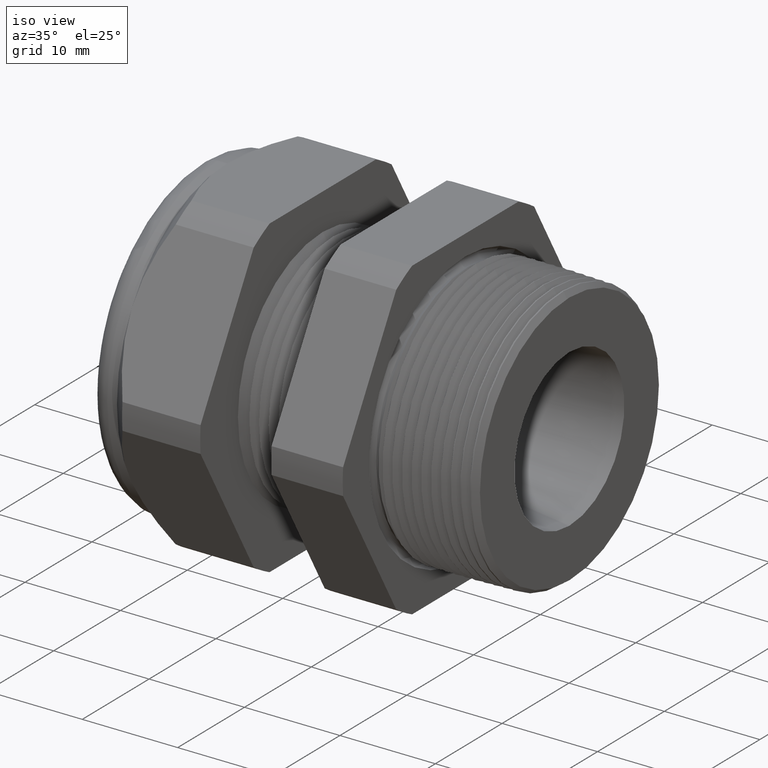
[diagram: clean part render]
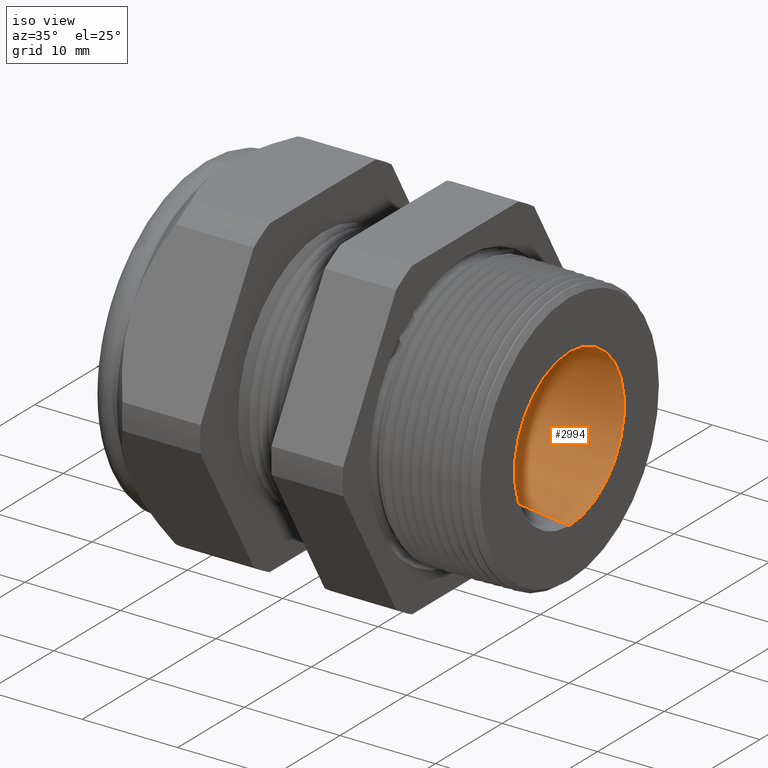
[diagram: same view with one face highlighted and labeled with its STEP entity id]
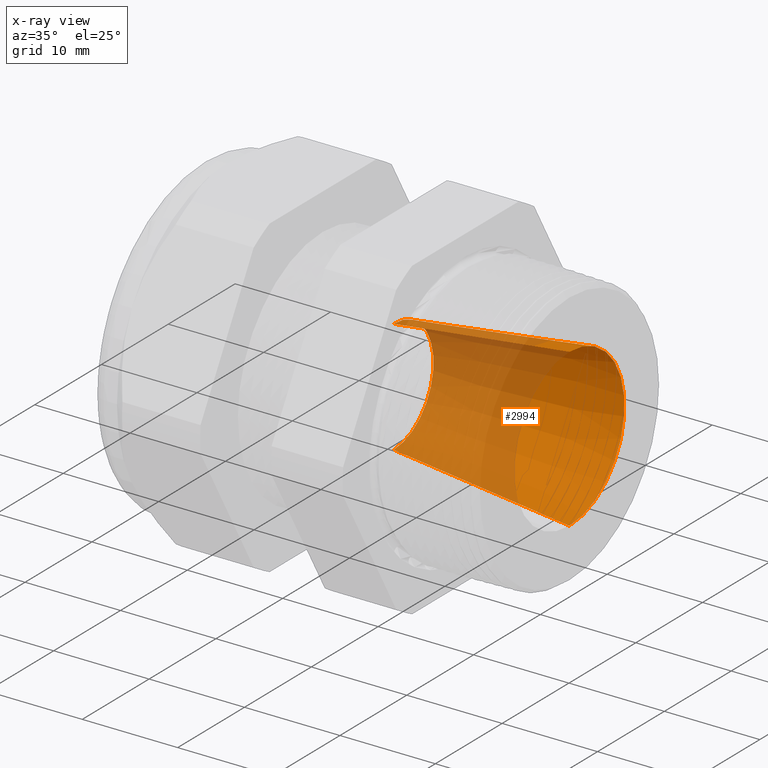
[diagram: x-ray of the same camera — body ghosted, the highlighted face saturated]
A machine part, iso view. The second image highlights one B-rep face of the part: STEP entity #2994.
The next image is the same camera in x-ray: the body ghosted, the highlighted face saturated — about 53% of this face is hidden behind the body in this view.
In plain terms, the highlighted conical surface has half-angle 7 deg.
Its self-contained STEP definition (entity closure, byte-faithful):
#226 = EDGE_CURVE ( 'NONE', #3517, #227, #673, .T. ) ;
#227 = VERTEX_POINT ( 'NONE', #727 ) ;
#230 = VERTEX_POINT ( 'NONE', #721 ) ;
#232 = EDGE_CURVE ( 'NONE', #3503, #230, #720, .T. ) ;
#673 = LINE ( 'NONE', #730, #729 ) ;
#717 = DIRECTION ( 'NONE',  ( 0.9925461516413227600, 0.0000000000000000000, -0.1218693434051409100 ) ) ;
#718 = VECTOR ( 'NONE', #717, 39.37007874015748900 ) ;
#719 = CARTESIAN_POINT ( 'NONE',  ( -0.6052755905511809600, 0.0000000000000000000, -0.2349999999999999900 ) ) ;
#720 = LINE ( 'NONE', #719, #718 ) ;
#721 = CARTESIAN_POINT ( 'NONE',  ( 0.1199999999999999500, 0.0000000000000000000, -0.3240526449194167100 ) ) ;
#727 = CARTESIAN_POINT ( 'NONE',  ( 0.1199999999999999500, 3.968500343557975000E-017, 0.3240526449194167100 ) ) ;
#728 = DIRECTION ( 'NONE',  ( 0.9925461516413227600, 1.492469013152954000E-017, 0.1218693434051409100 ) ) ;
#729 = VECTOR ( 'NONE', #728, 39.37007874015748900 ) ;
#730 = CARTESIAN_POINT ( 'NONE',  ( -0.6052755905511809600, 2.877919977996279800E-017, 0.2349999999999999900 ) ) ;
#1085 = DIRECTION ( 'NONE',  ( 0.0000000000000000000, 0.0000000000000000000, -1.000000000000000000 ) ) ;
#1086 = DIRECTION ( 'NONE',  ( 1.000000000000000000, 0.0000000000000000000, 0.0000000000000000000 ) ) ;
#1087 = CARTESIAN_POINT ( 'NONE',  ( 0.1199999999999999500, 0.0000000000000000000, 0.0000000000000000000 ) ) ;
#1088 = AXIS2_PLACEMENT_3D ( 'NONE', #1087, #1086, #1085 ) ;
#1089 = CIRCLE ( 'NONE', #1088, 0.3240526449194167100 ) ;
#1130 = DIRECTION ( 'NONE',  ( 0.0000000000000000000, 0.0000000000000000000, -1.000000000000000000 ) ) ;
#1131 = DIRECTION ( 'NONE',  ( 1.000000000000000000, 0.0000000000000000000, 0.0000000000000000000 ) ) ;
#1132 = CARTESIAN_POINT ( 'NONE',  ( -0.6052755905511809600, 0.0000000000000000000, 0.0000000000000000000 ) ) ;
#1133 = AXIS2_PLACEMENT_3D ( 'NONE', #1132, #1131, #1130 ) ;
#1135 = CONICAL_SURFACE ( 'NONE', #1133, 0.2349999999999999900, 0.1221730476395964700 ) ;
#1136 = FACE_OUTER_BOUND ( 'NONE', #2982, .T. ) ;
#1168 = DIRECTION ( 'NONE',  ( 0.0000000000000000000, 0.0000000000000000000, -1.000000000000000000 ) ) ;
#1169 = DIRECTION ( 'NONE',  ( 1.000000000000000000, 0.0000000000000000000, 0.0000000000000000000 ) ) ;
#1170 = AXIS2_PLACEMENT_3D ( 'NONE', #1176, #1169, #1168 ) ;
#1171 = CIRCLE ( 'NONE', #1170, 0.2349999999999999900 ) ;
#1176 = CARTESIAN_POINT ( 'NONE',  ( -0.6052755905511809600, 0.0000000000000000000, 0.0000000000000000000 ) ) ;
#1884 = CARTESIAN_POINT ( 'NONE',  ( -0.6052755905511809600, 0.0000000000000000000, -0.2349999999999999900 ) ) ;
#1916 = CARTESIAN_POINT ( 'NONE',  ( -0.6052755905511809600, 3.423210160777128000E-017, 0.2349999999999999900 ) ) ;
#2982 = EDGE_LOOP ( 'NONE', ( #2984, #2983, #3014, #3015 ) ) ;
#2983 = ORIENTED_EDGE ( 'NONE', *, *, #3012, .F. ) ;
#2984 = ORIENTED_EDGE ( 'NONE', *, *, #226, .F. ) ;
#2988 = EDGE_CURVE ( 'NONE', #230, #227, #1089, .T. ) ;
#2994 = ADVANCED_FACE ( 'NONE', ( #1136 ), #1135, .F. ) ;
#3012 = EDGE_CURVE ( 'NONE', #3503, #3517, #1171, .T. ) ;
#3014 = ORIENTED_EDGE ( 'NONE', *, *, #232, .T. ) ;
#3015 = ORIENTED_EDGE ( 'NONE', *, *, #2988, .T. ) ;
#3503 = VERTEX_POINT ( 'NONE', #1884 ) ;
#3517 = VERTEX_POINT ( 'NONE', #1916 ) ;